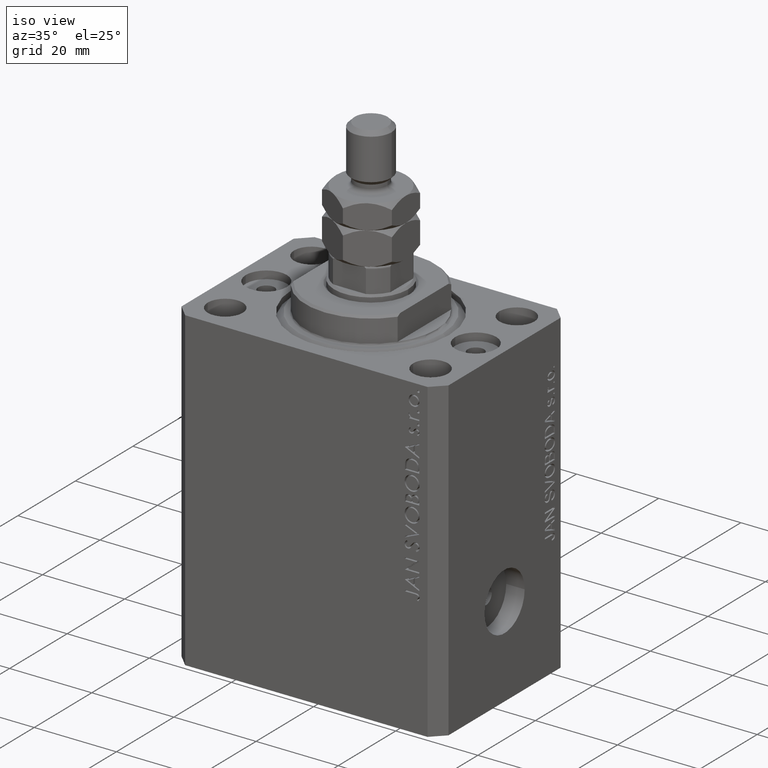
[diagram: clean part render]
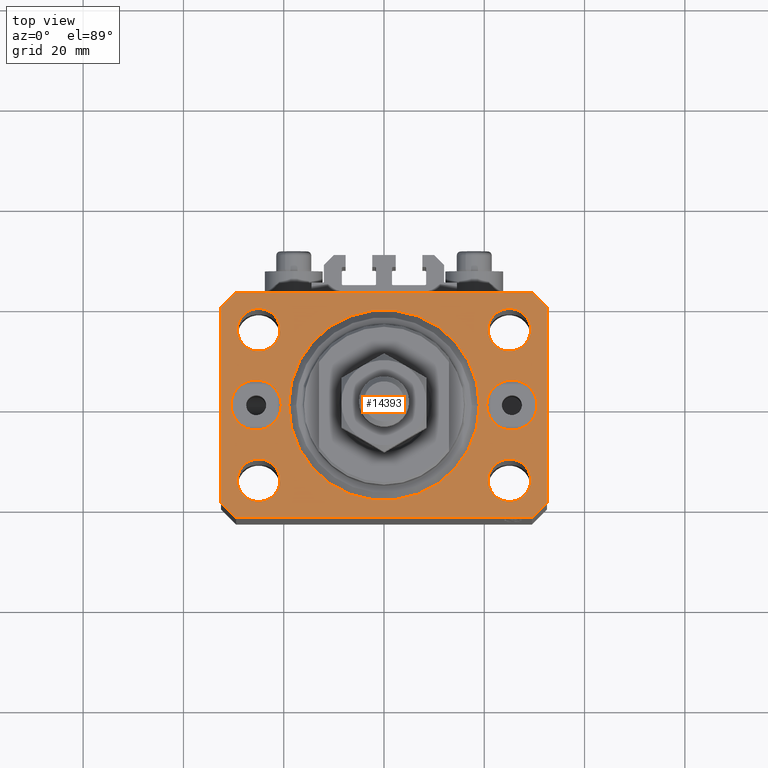
[diagram: tour spotlight — one face highlighted and labeled with its STEP entity id]
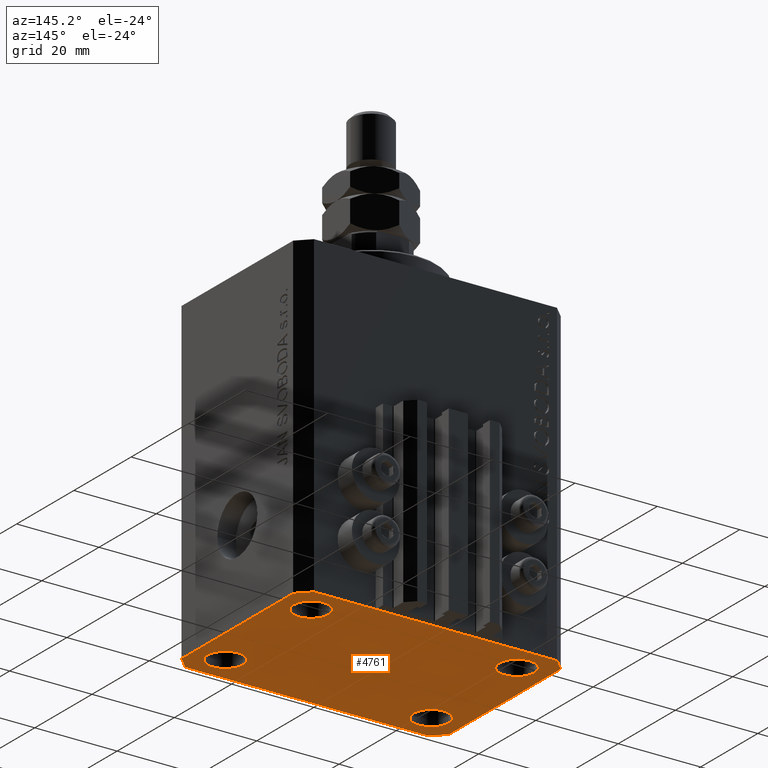
[diagram: tour spotlight — one face highlighted and labeled with its STEP entity id]
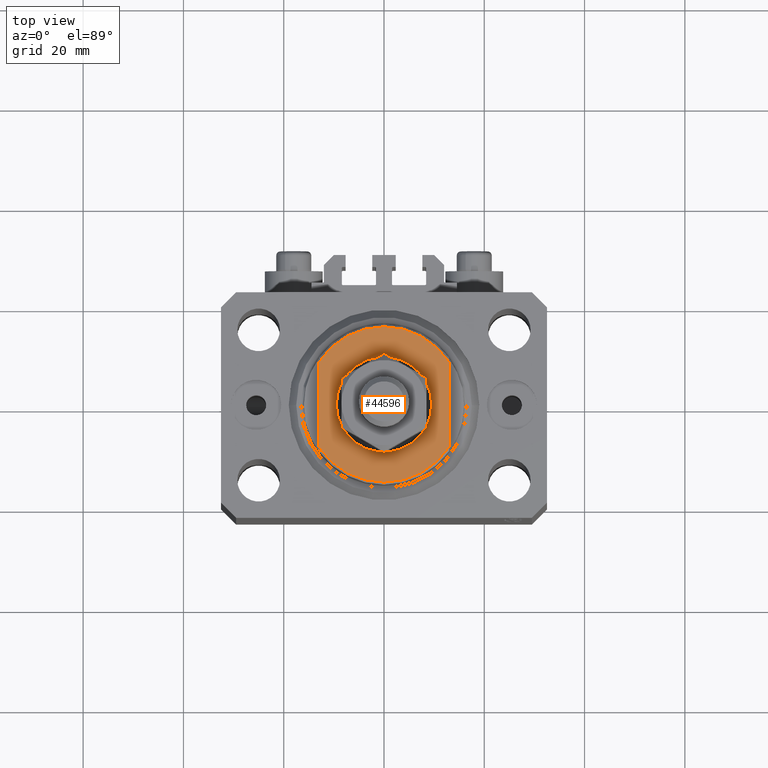
[diagram: tour spotlight — one face highlighted and labeled with its STEP entity id]
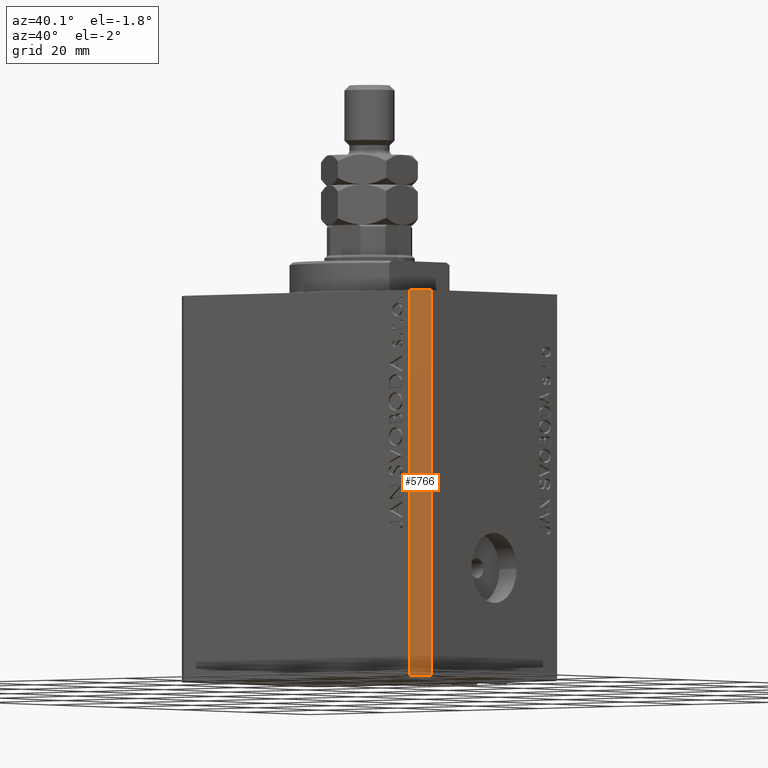
[diagram: tour spotlight — one face highlighted and labeled with its STEP entity id]
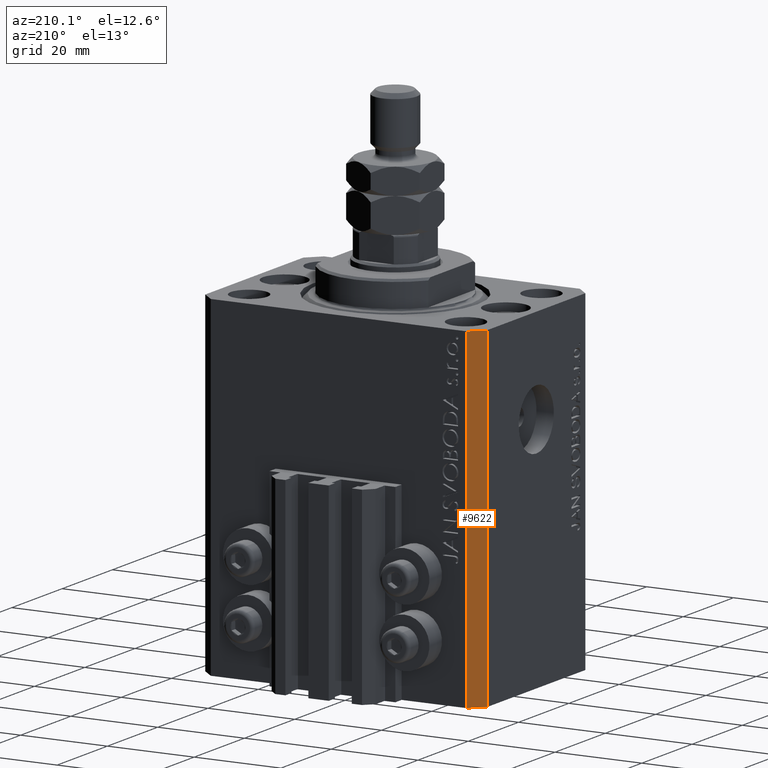
[diagram: tour spotlight — one face highlighted and labeled with its STEP entity id]
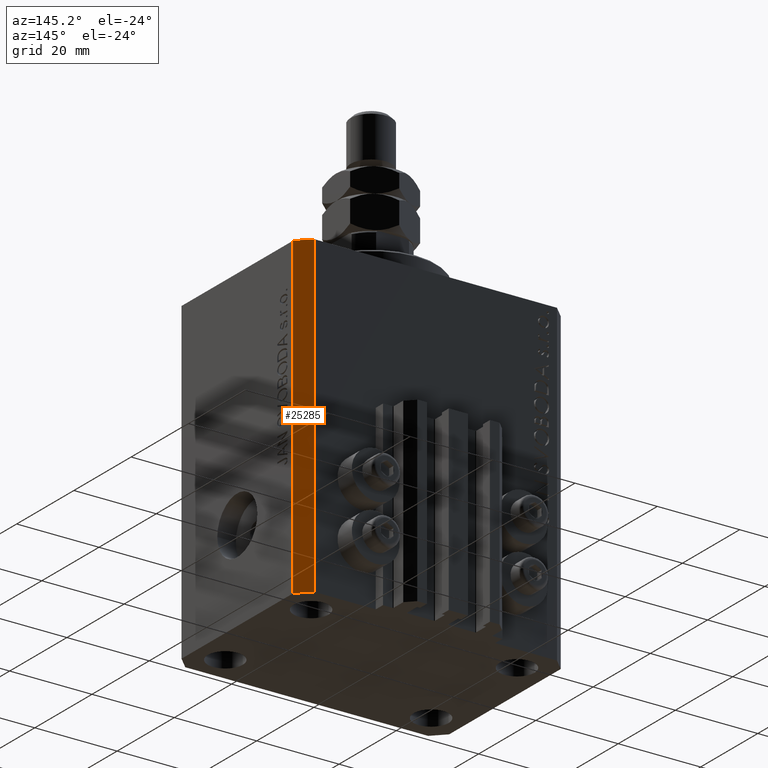
[diagram: tour spotlight — one face highlighted and labeled with its STEP entity id]
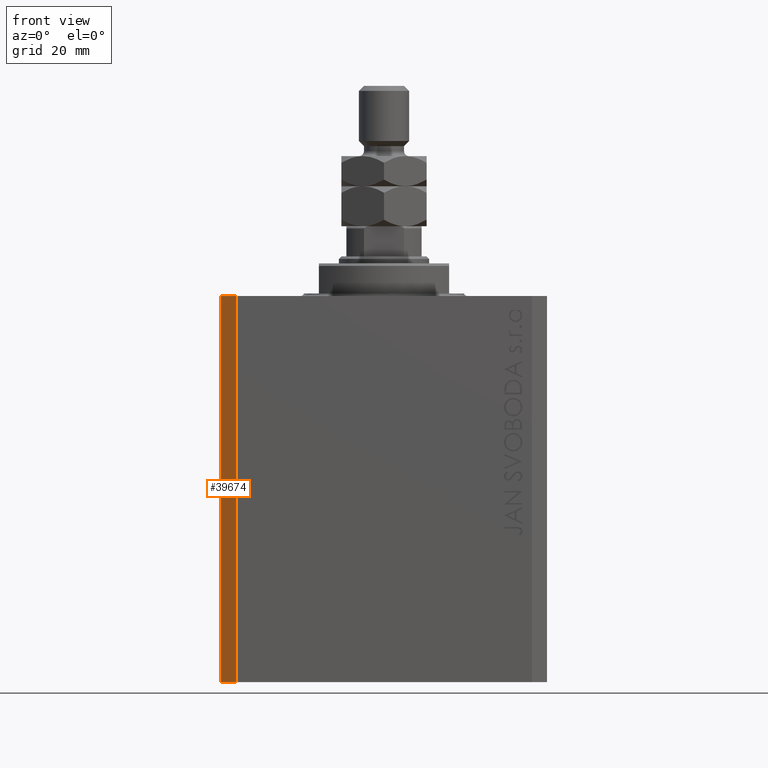
[diagram: tour spotlight — one face highlighted and labeled with its STEP entity id]
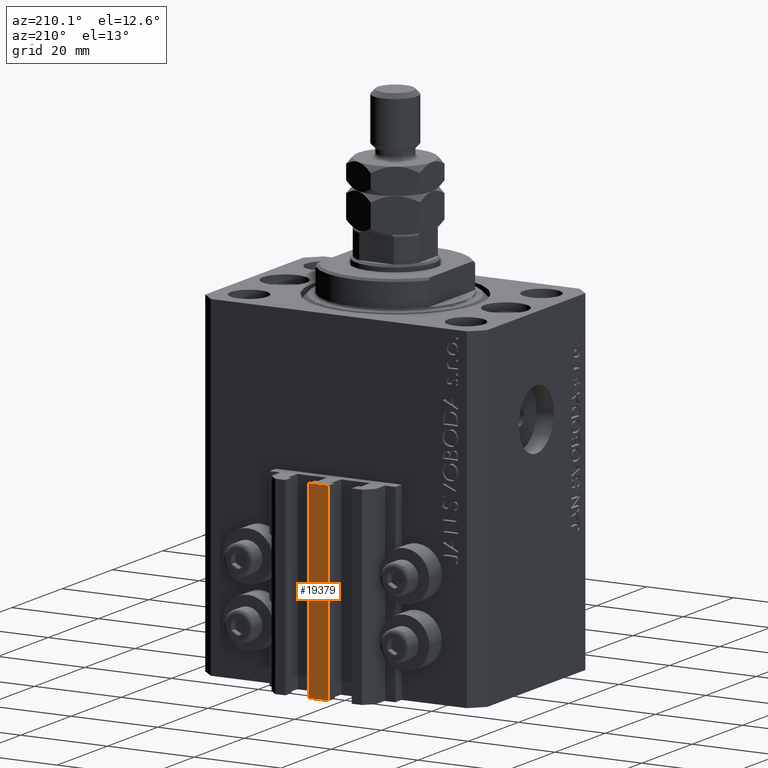
[diagram: tour spotlight — one face highlighted and labeled with its STEP entity id]
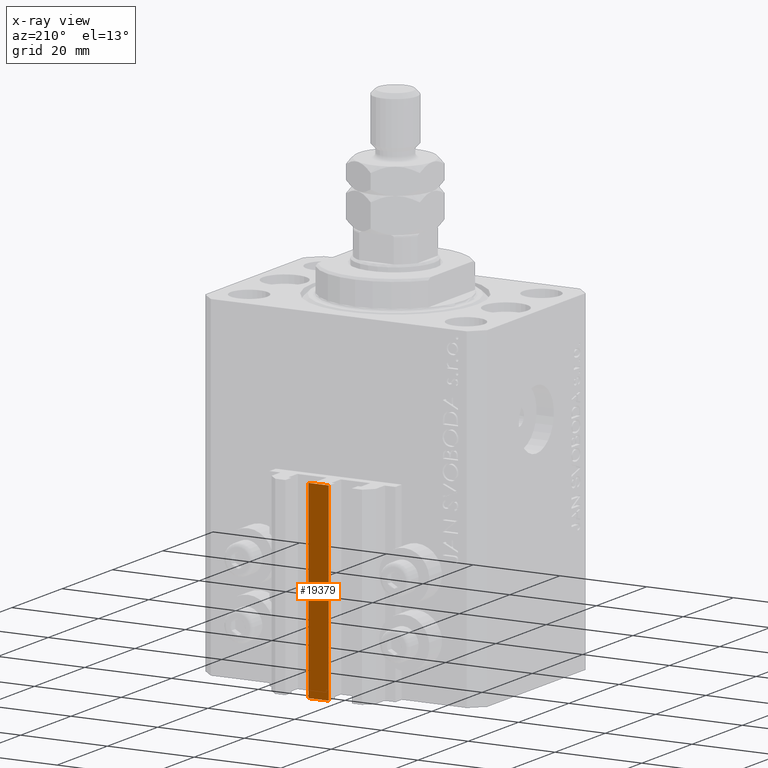
[diagram: x-ray of the same camera — body ghosted, this tour face saturated]
A machine part: a face-by-face anatomy tour. The part has 1082 B-rep faces; the first image is the clean iso view, then the 8 largest visible faces are spotlighted one at a time (largest first), each with its STEP entity span.

Face 1 — top view, entity #14393. In plain terms, the highlighted planar face has unit normal (0, 0, 1).
Definition (entity closure, byte-faithful):
#128 = VERTEX_POINT ( 'NONE', #23561 ) ;
#274 = CARTESIAN_POINT ( 'NONE',  ( -20.74999999997862687, 14.99999999999999645, 0.000000000000000000 ) ) ;
#418 = VECTOR ( 'NONE', #4893, 1000.000000000000000 ) ;
#1132 = CIRCLE ( 'NONE', #6678, 4.250000000021375790 ) ;
#1387 = EDGE_CURVE ( 'NONE', #16491, #32396, #19212, .T. ) ;
#1441 = EDGE_CURVE ( 'NONE', #20265, #28200, #23958, .T. ) ;
#1923 = VECTOR ( 'NONE', #24142, 1000.000000000000114 ) ;
#2418 = VERTEX_POINT ( 'NONE', #17191 ) ;
#2447 = CARTESIAN_POINT ( 'NONE',  ( -32.49999999999650413, 19.49999999999949907, 0.000000000000000000 ) ) ;
#2504 = DIRECTION ( 'NONE',  ( 1.000000000000000000, 0.000000000000000000, 0.000000000000000000 ) ) ;
#3654 = DIRECTION ( 'NONE',  ( 0.000000000000000000, 0.000000000000000000, 1.000000000000000000 ) ) ;
#4087 = CARTESIAN_POINT ( 'NONE',  ( -29.25000000002137668, 14.99999999999999645, 0.000000000000000000 ) ) ;
#4254 = AXIS2_PLACEMENT_3D ( 'NONE', #43403, #27610, #9602 ) ;
#4372 = ORIENTED_EDGE ( 'NONE', *, *, #13687, .F. ) ;
#4483 = CARTESIAN_POINT ( 'NONE',  ( 30.50000000000333955, 0.000000000000000000, 0.000000000000000000 ) ) ;
#4545 = VERTEX_POINT ( 'NONE', #4483 ) ;
#4619 = CIRCLE ( 'NONE', #20368, 5.000000000003342215 ) ;
#4742 = DIRECTION ( 'NONE',  ( 1.000000000000000000, 0.000000000000000000, -0.000000000000000000 ) ) ;
#4797 = EDGE_CURVE ( 'NONE', #16355, #48079, #11823, .T. ) ;
#4893 = DIRECTION ( 'NONE',  ( 0.7071067811865483499, 0.7071067811865466846, 0.000000000000000000 ) ) ;
#5497 = DIRECTION ( 'NONE',  ( 0.000000000000000000, 0.000000000000000000, 1.000000000000000000 ) ) ;
#5737 = DIRECTION ( 'NONE',  ( 1.000000000000000000, 0.000000000000000000, 0.000000000000000000 ) ) ;
#5991 = VECTOR ( 'NONE', #11579, 1000.000000000000000 ) ;
#6005 = VECTOR ( 'NONE', #20113, 1000.000000000000000 ) ;
#6097 = CARTESIAN_POINT ( 'NONE',  ( 20.49999999999665690, 6.123233995740857512E-16, 0.000000000000000000 ) ) ;
#6207 = ORIENTED_EDGE ( 'NONE', *, *, #19282, .T. ) ;
#6253 = ORIENTED_EDGE ( 'NONE', *, *, #40636, .T. ) ;
#6617 = EDGE_LOOP ( 'NONE', ( #6253, #37521 ) ) ;
#6627 = DIRECTION ( 'NONE',  ( 1.000000000000000000, 0.000000000000000000, 0.000000000000000000 ) ) ;
#6678 = AXIS2_PLACEMENT_3D ( 'NONE', #11959, #23317, #27007 ) ;
#7380 = DIRECTION ( 'NONE',  ( 1.000000000000000000, 0.000000000000000000, 0.000000000000000000 ) ) ;
#7541 = ORIENTED_EDGE ( 'NONE', *, *, #45627, .F. ) ;
#7923 = DIRECTION ( 'NONE',  ( 0.000000000000000000, 0.000000000000000000, 1.000000000000000000 ) ) ;
#8043 = CARTESIAN_POINT ( 'NONE',  ( 20.75000000002367884, -15.00000000000000355, 0.000000000000000000 ) ) ;
#8589 = CARTESIAN_POINT ( 'NONE',  ( -25.00000000000000000, 14.99999999999999645, 0.000000000000000000 ) ) ;
#8979 = EDGE_LOOP ( 'NONE', ( #43322, #18980 ) ) ;
#9066 = CIRCLE ( 'NONE', #42173, 4.250000000021375790 ) ;
#9104 = CARTESIAN_POINT ( 'NONE',  ( -32.49999999999650413, -19.49999999999949907, 0.000000000000000000 ) ) ;
#9404 = ORIENTED_EDGE ( 'NONE', *, *, #31840, .F. ) ;
#9602 = DIRECTION ( 'NONE',  ( 1.000000000000000000, 0.000000000000000000, 0.000000000000000000 ) ) ;
#9686 = ORIENTED_EDGE ( 'NONE', *, *, #14099, .T. ) ;
#9987 = DIRECTION ( 'NONE',  ( 0.000000000000000000, 0.000000000000000000, 1.000000000000000000 ) ) ;
#10142 = VERTEX_POINT ( 'NONE', #274 ) ;
#10635 = EDGE_LOOP ( 'NONE', ( #39430, #36838 ) ) ;
#11218 = VERTEX_POINT ( 'NONE', #20682 ) ;
#11540 = CIRCLE ( 'NONE', #28062, 4.250000000040370374 ) ;
#11579 = DIRECTION ( 'NONE',  ( 1.334402673828349134E-14, 1.000000000000000000, 0.000000000000000000 ) ) ;
#11823 = LINE ( 'NONE', #37978, #418 ) ;
#11959 = CARTESIAN_POINT ( 'NONE',  ( -25.00000000000000000, 14.99999999999999645, 0.000000000000000000 ) ) ;
#12134 = FACE_BOUND ( 'NONE', #6617, .T. ) ;
#12215 = EDGE_CURVE ( 'NONE', #128, #37840, #39096, .T. ) ;
#12305 = EDGE_CURVE ( 'NONE', #32396, #16491, #16786, .T. ) ;
#12693 = EDGE_CURVE ( 'NONE', #32391, #10142, #9066, .T. ) ;
#12878 = AXIS2_PLACEMENT_3D ( 'NONE', #20370, #31720, #24323 ) ;
#12914 = VECTOR ( 'NONE', #44966, 1000.000000000000114 ) ;
#13687 = EDGE_CURVE ( 'NONE', #43193, #19188, #26438, .T. ) ;
#13735 = CIRCLE ( 'NONE', #32673, 4.249999999957291053 ) ;
#14099 = EDGE_CURVE ( 'NONE', #25572, #27592, #18002, .T. ) ;
#14393 = ADVANCED_FACE ( 'NONE', ( #23963, #16316, #42969, #42492, #46411, #31135, #45922, #12134 ), #23719, .T. ) ;
#14790 = CARTESIAN_POINT ( 'NONE',  ( 19.00000000000000000, 0.000000000000000000, 0.000000000000000000 ) ) ;
#14862 = EDGE_CURVE ( 'NONE', #10142, #32391, #1132, .T. ) ;
#15578 = CARTESIAN_POINT ( 'NONE',  ( 20.75000000004271072, 14.99999999999999289, 0.000000000000000000 ) ) ;
#15602 = EDGE_CURVE ( 'NONE', #32301, #4545, #39704, .T. ) ;
#16048 = CIRCLE ( 'NONE', #12878, 4.249999999957291053 ) ;
#16316 = FACE_BOUND ( 'NONE', #33933, .T. ) ;
#16355 = VERTEX_POINT ( 'NONE', #22000 ) ;
#16491 = VERTEX_POINT ( 'NONE', #23207 ) ;
#16786 = CIRCLE ( 'NONE', #44400, 4.249999999976314058 ) ;
#16978 = LINE ( 'NONE', #9104, #1923 ) ;
#17191 = CARTESIAN_POINT ( 'NONE',  ( -20.74999999995962341, -15.00000000000000355, 0.000000000000000000 ) ) ;
#17888 = EDGE_LOOP ( 'NONE', ( #9404, #4372 ) ) ;
#18002 = LINE ( 'NONE', #2447, #48511 ) ;
#18116 = CARTESIAN_POINT ( 'NONE',  ( 24.99999999999999289, -15.00000000000000355, 0.000000000000000000 ) ) ;
#18980 = ORIENTED_EDGE ( 'NONE', *, *, #12305, .F. ) ;
#19188 = VERTEX_POINT ( 'NONE', #14790 ) ;
#19204 = AXIS2_PLACEMENT_3D ( 'NONE', #23673, #38979, #30840 ) ;
#19212 = CIRCLE ( 'NONE', #4254, 4.249999999976314058 ) ;
#19282 = EDGE_CURVE ( 'NONE', #48079, #128, #45835, .T. ) ;
#19770 = CARTESIAN_POINT ( 'NONE',  ( -20.49999999999665690, 0.000000000000000000, 0.000000000000000000 ) ) ;
#19907 = DIRECTION ( 'NONE',  ( 0.000000000000000000, 0.000000000000000000, 1.000000000000000000 ) ) ;
#20113 = DIRECTION ( 'NONE',  ( 1.000000000000000000, 1.176083712526788232E-16, 0.000000000000000000 ) ) ;
#20265 = VERTEX_POINT ( 'NONE', #19770 ) ;
#20368 = AXIS2_PLACEMENT_3D ( 'NONE', #40921, #3654, #6627 ) ;
#20370 = CARTESIAN_POINT ( 'NONE',  ( 25.00000000000000000, 14.99999999999999289, 0.000000000000000000 ) ) ;
#20682 = CARTESIAN_POINT ( 'NONE',  ( -29.25000000004036593, -15.00000000000000355, 0.000000000000000000 ) ) ;
#20838 = AXIS2_PLACEMENT_3D ( 'NONE', #45868, #7923, #37774 ) ;
#20972 = EDGE_LOOP ( 'NONE', ( #42608, #33399 ) ) ;
#22000 = CARTESIAN_POINT ( 'NONE',  ( 29.49999999999650413, -22.49999999999949196, 0.000000000000000000 ) ) ;
#22201 = DIRECTION ( 'NONE',  ( 0.000000000000000000, 0.000000000000000000, 1.000000000000000000 ) ) ;
#22496 = AXIS2_PLACEMENT_3D ( 'NONE', #24970, #29156, #2504 ) ;
#22808 = ORIENTED_EDGE ( 'NONE', *, *, #12215, .T. ) ;
#22815 = CARTESIAN_POINT ( 'NONE',  ( 29.49999999999707967, 22.49999999999952038, 0.000000000000000000 ) ) ;
#23111 = CIRCLE ( 'NONE', #26298, 4.250000000040370374 ) ;
#23207 = CARTESIAN_POINT ( 'NONE',  ( 29.24999999997631051, -15.00000000000000355, 0.000000000000000000 ) ) ;
#23317 = DIRECTION ( 'NONE',  ( 0.000000000000000000, 0.000000000000000000, 1.000000000000000000 ) ) ;
#23342 = CARTESIAN_POINT ( 'NONE',  ( -29.49999999999650413, -22.49999999999949907, 0.000000000000000000 ) ) ;
#23561 = CARTESIAN_POINT ( 'NONE',  ( 32.49999999999702993, 19.49999999999945999, 0.000000000000000000 ) ) ;
#23673 = CARTESIAN_POINT ( 'NONE',  ( 25.50000000000000000, 0.000000000000000000, 0.000000000000000000 ) ) ;
#23719 = PLANE ( 'NONE',  #47690 ) ;
#23787 = DIRECTION ( 'NONE',  ( -0.7071067811865344721, 0.7071067811865606734, 0.000000000000000000 ) ) ;
#23958 = CIRCLE ( 'NONE', #46004, 5.000000000003342215 ) ;
#23963 = FACE_OUTER_BOUND ( 'NONE', #39880, .T. ) ;
#24142 = DIRECTION ( 'NONE',  ( 0.7071067811865474617, -0.7071067811865474617, 0.000000000000000000 ) ) ;
#24168 = VERTEX_POINT ( 'NONE', #34804 ) ;
#24309 = EDGE_CURVE ( 'NONE', #11218, #2418, #23111, .T. ) ;
#24323 = DIRECTION ( 'NONE',  ( 1.000000000000000000, 0.000000000000000000, 0.000000000000000000 ) ) ;
#24970 = CARTESIAN_POINT ( 'NONE',  ( 0.000000000000000000, 0.000000000000000000, 0.000000000000000000 ) ) ;
#25537 = DIRECTION ( 'NONE',  ( -1.000000000000000000, -3.528251137580330676E-16, 0.000000000000000000 ) ) ;
#25572 = VERTEX_POINT ( 'NONE', #40112 ) ;
#25616 = CARTESIAN_POINT ( 'NONE',  ( -19.00000000000000000, 2.326828918379970970E-15, 0.000000000000000000 ) ) ;
#25671 = CARTESIAN_POINT ( 'NONE',  ( 25.00000000000000000, 14.99999999999999289, 0.000000000000000000 ) ) ;
#25850 = CARTESIAN_POINT ( 'NONE',  ( -29.49999999999650413, 22.49999999999949907, 0.000000000000000000 ) ) ;
#25911 = DIRECTION ( 'NONE',  ( 1.000000000000000000, 0.000000000000000000, 0.000000000000000000 ) ) ;
#26298 = AXIS2_PLACEMENT_3D ( 'NONE', #43907, #39970, #36017 ) ;
#26438 = CIRCLE ( 'NONE', #22496, 19.00000000000000000 ) ;
#26530 = EDGE_CURVE ( 'NONE', #37840, #44792, #45265, .T. ) ;
#27007 = DIRECTION ( 'NONE',  ( 1.000000000000000000, 0.000000000000000000, 0.000000000000000000 ) ) ;
#27092 = EDGE_CURVE ( 'NONE', #41681, #24168, #13735, .T. ) ;
#27548 = CARTESIAN_POINT ( 'NONE',  ( 29.49999999999707967, 22.49999999999952038, 0.000000000000000000 ) ) ;
#27592 = VERTEX_POINT ( 'NONE', #31419 ) ;
#27610 = DIRECTION ( 'NONE',  ( 0.000000000000000000, 0.000000000000000000, 1.000000000000000000 ) ) ;
#28062 = AXIS2_PLACEMENT_3D ( 'NONE', #39295, #5497, #5737 ) ;
#28200 = VERTEX_POINT ( 'NONE', #33096 ) ;
#28351 = CARTESIAN_POINT ( 'NONE',  ( -29.49999999999650413, -22.49999999999949907, 0.000000000000000000 ) ) ;
#28916 = EDGE_CURVE ( 'NONE', #24168, #41681, #16048, .T. ) ;
#29156 = DIRECTION ( 'NONE',  ( 0.000000000000000000, 0.000000000000000000, 1.000000000000000000 ) ) ;
#29570 = CARTESIAN_POINT ( 'NONE',  ( -25.50000000000000000, 0.000000000000000000, 0.000000000000000000 ) ) ;
#29671 = LINE ( 'NONE', #34114, #12914 ) ;
#30212 = ORIENTED_EDGE ( 'NONE', *, *, #35484, .T. ) ;
#30568 = CARTESIAN_POINT ( 'NONE',  ( 32.49999999999651124, -19.49999999999949196, 0.000000000000000000 ) ) ;
#30724 = EDGE_CURVE ( 'NONE', #44792, #25572, #29671, .T. ) ;
#30840 = DIRECTION ( 'NONE',  ( 1.000000000000000000, 0.000000000000000000, 0.000000000000000000 ) ) ;
#31135 = FACE_BOUND ( 'NONE', #17888, .T. ) ;
#31192 = EDGE_CURVE ( 'NONE', #27592, #32740, #16978, .T. ) ;
#31232 = DIRECTION ( 'NONE',  ( 0.000000000000000000, -0.000000000000000000, -1.000000000000000000 ) ) ;
#31419 = CARTESIAN_POINT ( 'NONE',  ( -32.49999999999650413, -19.49999999999949907, 0.000000000000000000 ) ) ;
#31465 = DIRECTION ( 'NONE',  ( 1.000000000000000000, 0.000000000000000000, 0.000000000000000000 ) ) ;
#31670 = ORIENTED_EDGE ( 'NONE', *, *, #31192, .T. ) ;
#31720 = DIRECTION ( 'NONE',  ( 0.000000000000000000, 0.000000000000000000, 1.000000000000000000 ) ) ;
#31840 = EDGE_CURVE ( 'NONE', #19188, #43193, #43725, .T. ) ;
#32192 = CIRCLE ( 'NONE', #44817, 5.000000000003342215 ) ;
#32301 = VERTEX_POINT ( 'NONE', #6097 ) ;
#32391 = VERTEX_POINT ( 'NONE', #4087 ) ;
#32396 = VERTEX_POINT ( 'NONE', #8043 ) ;
#32673 = AXIS2_PLACEMENT_3D ( 'NONE', #25671, #22201, #25911 ) ;
#32740 = VERTEX_POINT ( 'NONE', #28351 ) ;
#33096 = CARTESIAN_POINT ( 'NONE',  ( -30.50000000000333955, 6.123233995740857512E-16, 0.000000000000000000 ) ) ;
#33399 = ORIENTED_EDGE ( 'NONE', *, *, #24309, .F. ) ;
#33459 = VECTOR ( 'NONE', #25537, 1000.000000000000000 ) ;
#33933 = EDGE_LOOP ( 'NONE', ( #43088, #44869 ) ) ;
#34114 = CARTESIAN_POINT ( 'NONE',  ( -29.49999999999650413, 22.49999999999949907, 0.000000000000000000 ) ) ;
#34552 = EDGE_CURVE ( 'NONE', #2418, #11218, #11540, .T. ) ;
#34804 = CARTESIAN_POINT ( 'NONE',  ( 29.24999999995729283, 14.99999999999999289, 0.000000000000000000 ) ) ;
#35484 = EDGE_CURVE ( 'NONE', #32740, #16355, #42347, .T. ) ;
#36017 = DIRECTION ( 'NONE',  ( 1.000000000000000000, 0.000000000000000000, 0.000000000000000000 ) ) ;
#36188 = EDGE_LOOP ( 'NONE', ( #36863, #7541 ) ) ;
#36555 = ORIENTED_EDGE ( 'NONE', *, *, #4797, .T. ) ;
#36612 = DIRECTION ( 'NONE',  ( 1.000000000000000000, 0.000000000000000000, 0.000000000000000000 ) ) ;
#36664 = CARTESIAN_POINT ( 'NONE',  ( 32.49999999999651124, -19.49999999999949196, 0.000000000000000000 ) ) ;
#36838 = ORIENTED_EDGE ( 'NONE', *, *, #27092, .F. ) ;
#36863 = ORIENTED_EDGE ( 'NONE', *, *, #1441, .F. ) ;
#36960 = ORIENTED_EDGE ( 'NONE', *, *, #26530, .T. ) ;
#37521 = ORIENTED_EDGE ( 'NONE', *, *, #15602, .T. ) ;
#37774 = DIRECTION ( 'NONE',  ( 1.000000000000000000, 0.000000000000000000, 0.000000000000000000 ) ) ;
#37840 = VERTEX_POINT ( 'NONE', #27548 ) ;
#37978 = CARTESIAN_POINT ( 'NONE',  ( 29.49999999999650413, -22.49999999999949196, 0.000000000000000000 ) ) ;
#38618 = CARTESIAN_POINT ( 'NONE',  ( 32.49999999999702993, 19.49999999999945999, 0.000000000000000000 ) ) ;
#38861 = VECTOR ( 'NONE', #23787, 1000.000000000000000 ) ;
#38979 = DIRECTION ( 'NONE',  ( 0.000000000000000000, -0.000000000000000000, -1.000000000000000000 ) ) ;
#39028 = CARTESIAN_POINT ( 'NONE',  ( 0.000000000000000000, 0.000000000000000000, 0.000000000000000000 ) ) ;
#39096 = LINE ( 'NONE', #38618, #38861 ) ;
#39295 = CARTESIAN_POINT ( 'NONE',  ( -24.99999999999999289, -15.00000000000000355, 0.000000000000000000 ) ) ;
#39430 = ORIENTED_EDGE ( 'NONE', *, *, #28916, .F. ) ;
#39704 = CIRCLE ( 'NONE', #19204, 5.000000000003342215 ) ;
#39880 = EDGE_LOOP ( 'NONE', ( #36960, #42663, #9686, #31670, #30212, #36555, #6207, #22808 ) ) ;
#39970 = DIRECTION ( 'NONE',  ( 0.000000000000000000, 0.000000000000000000, 1.000000000000000000 ) ) ;
#40112 = CARTESIAN_POINT ( 'NONE',  ( -32.49999999999650413, 19.49999999999949907, 0.000000000000000000 ) ) ;
#40636 = EDGE_CURVE ( 'NONE', #4545, #32301, #32192, .T. ) ;
#40921 = CARTESIAN_POINT ( 'NONE',  ( -25.50000000000000000, 0.000000000000000000, 0.000000000000000000 ) ) ;
#41681 = VERTEX_POINT ( 'NONE', #15578 ) ;
#42010 = DIRECTION ( 'NONE',  ( 0.000000000000000000, 0.000000000000000000, 1.000000000000000000 ) ) ;
#42173 = AXIS2_PLACEMENT_3D ( 'NONE', #8589, #19907, #45356 ) ;
#42347 = LINE ( 'NONE', #23342, #6005 ) ;
#42492 = FACE_BOUND ( 'NONE', #8979, .T. ) ;
#42608 = ORIENTED_EDGE ( 'NONE', *, *, #34552, .F. ) ;
#42663 = ORIENTED_EDGE ( 'NONE', *, *, #30724, .T. ) ;
#42969 = FACE_BOUND ( 'NONE', #10635, .T. ) ;
#43088 = ORIENTED_EDGE ( 'NONE', *, *, #14862, .F. ) ;
#43193 = VERTEX_POINT ( 'NONE', #25616 ) ;
#43322 = ORIENTED_EDGE ( 'NONE', *, *, #1387, .F. ) ;
#43403 = CARTESIAN_POINT ( 'NONE',  ( 24.99999999999999289, -15.00000000000000355, 0.000000000000000000 ) ) ;
#43725 = CIRCLE ( 'NONE', #20838, 19.00000000000000000 ) ;
#43907 = CARTESIAN_POINT ( 'NONE',  ( -24.99999999999999289, -15.00000000000000355, 0.000000000000000000 ) ) ;
#44400 = AXIS2_PLACEMENT_3D ( 'NONE', #18116, #9987, #36612 ) ;
#44792 = VERTEX_POINT ( 'NONE', #25850 ) ;
#44817 = AXIS2_PLACEMENT_3D ( 'NONE', #46023, #31232, #31465 ) ;
#44869 = ORIENTED_EDGE ( 'NONE', *, *, #12693, .F. ) ;
#44966 = DIRECTION ( 'NONE',  ( -0.7071067811865474617, -0.7071067811865474617, 0.000000000000000000 ) ) ;
#45265 = LINE ( 'NONE', #22815, #33459 ) ;
#45356 = DIRECTION ( 'NONE',  ( 1.000000000000000000, 0.000000000000000000, 0.000000000000000000 ) ) ;
#45627 = EDGE_CURVE ( 'NONE', #28200, #20265, #4619, .T. ) ;
#45835 = LINE ( 'NONE', #30568, #5991 ) ;
#45868 = CARTESIAN_POINT ( 'NONE',  ( 0.000000000000000000, 0.000000000000000000, 0.000000000000000000 ) ) ;
#45922 = FACE_BOUND ( 'NONE', #36188, .T. ) ;
#46004 = AXIS2_PLACEMENT_3D ( 'NONE', #29570, #48070, #7380 ) ;
#46023 = CARTESIAN_POINT ( 'NONE',  ( 25.50000000000000000, 0.000000000000000000, 0.000000000000000000 ) ) ;
#46411 = FACE_BOUND ( 'NONE', #20972, .T. ) ;
#47102 = DIRECTION ( 'NONE',  ( 0.000000000000000000, -1.000000000000000000, 0.000000000000000000 ) ) ;
#47690 = AXIS2_PLACEMENT_3D ( 'NONE', #39028, #42010, #4742 ) ;
#48070 = DIRECTION ( 'NONE',  ( 0.000000000000000000, 0.000000000000000000, 1.000000000000000000 ) ) ;
#48079 = VERTEX_POINT ( 'NONE', #36664 ) ;
#48511 = VECTOR ( 'NONE', #47102, 1000.000000000000000 ) ;

Face 2 — auxiliary view, entity #4761. In plain terms, the highlighted planar face has unit normal (0, 0, 1).
Definition (entity closure, byte-faithful):
#234 = FACE_BOUND ( 'NONE', #34494, .T. ) ;
#1248 = DIRECTION ( 'NONE',  ( 1.000000000000000000, 0.000000000000000000, 0.000000000000000000 ) ) ;
#2370 = DIRECTION ( 'NONE',  ( 0.7071067811865483499, 0.7071067811865466846, 0.000000000000000000 ) ) ;
#2527 = ORIENTED_EDGE ( 'NONE', *, *, #37338, .F. ) ;
#2684 = EDGE_CURVE ( 'NONE', #26985, #17857, #17706, .T. ) ;
#2933 = VECTOR ( 'NONE', #31193, 1000.000000000000000 ) ;
#3146 = ORIENTED_EDGE ( 'NONE', *, *, #33051, .F. ) ;
#3454 = VERTEX_POINT ( 'NONE', #34405 ) ;
#3637 = CARTESIAN_POINT ( 'NONE',  ( 29.49999999999707967, 22.49999999999952038, -77.00000000000000000 ) ) ;
#3732 = VERTEX_POINT ( 'NONE', #35719 ) ;
#4424 = FACE_BOUND ( 'NONE', #21790, .T. ) ;
#4534 = CARTESIAN_POINT ( 'NONE',  ( 32.49999999999702993, 19.49999999999945999, -77.00000000000000000 ) ) ;
#4761 = ADVANCED_FACE ( 'NONE', ( #45138, #7662, #4424, #234, #23409 ), #22927, .F. ) ;
#4964 = VERTEX_POINT ( 'NONE', #45269 ) ;
#5084 = DIRECTION ( 'NONE',  ( -0.000000000000000000, -0.000000000000000000, -1.000000000000000000 ) ) ;
#5205 = CARTESIAN_POINT ( 'NONE',  ( -29.25000000002137668, 14.99999999999999645, -77.00000000000000000 ) ) ;
#5421 = DIRECTION ( 'NONE',  ( -0.000000000000000000, -0.000000000000000000, -1.000000000000000000 ) ) ;
#5796 = DIRECTION ( 'NONE',  ( 1.000000000000000000, 0.000000000000000000, 0.000000000000000000 ) ) ;
#6749 = CARTESIAN_POINT ( 'NONE',  ( -29.49999999999650413, 22.49999999999949907, -77.00000000000000000 ) ) ;
#7000 = DIRECTION ( 'NONE',  ( -0.7071067811865474617, -0.7071067811865474617, 0.000000000000000000 ) ) ;
#7517 = CIRCLE ( 'NONE', #13000, 4.250000000040370374 ) ;
#7536 = AXIS2_PLACEMENT_3D ( 'NONE', #9319, #47035, #35701 ) ;
#7662 = FACE_BOUND ( 'NONE', #36752, .T. ) ;
#7820 = CIRCLE ( 'NONE', #21985, 4.249999999957291053 ) ;
#8421 = CARTESIAN_POINT ( 'NONE',  ( 29.49999999999707967, 22.49999999999952038, -77.00000000000000000 ) ) ;
#8563 = CARTESIAN_POINT ( 'NONE',  ( 25.00000000000000000, 14.99999999999999289, -77.00000000000000000 ) ) ;
#8883 = DIRECTION ( 'NONE',  ( -1.000000000000000000, -3.528251137580330676E-16, 0.000000000000000000 ) ) ;
#9319 = CARTESIAN_POINT ( 'NONE',  ( -24.99999999999999289, -15.00000000000000355, -77.00000000000000000 ) ) ;
#10257 = DIRECTION ( 'NONE',  ( 0.7071067811865474617, -0.7071067811865474617, 0.000000000000000000 ) ) ;
#10272 = CARTESIAN_POINT ( 'NONE',  ( -32.49999999999650413, 19.49999999999949907, -77.00000000000000000 ) ) ;
#11117 = EDGE_CURVE ( 'NONE', #20317, #35380, #38806, .T. ) ;
#11226 = ORIENTED_EDGE ( 'NONE', *, *, #41645, .F. ) ;
#11587 = DIRECTION ( 'NONE',  ( 1.000000000000000000, 0.000000000000000000, -0.000000000000000000 ) ) ;
#11865 = CARTESIAN_POINT ( 'NONE',  ( 24.99999999999999289, -15.00000000000000355, -77.00000000000000000 ) ) ;
#12223 = CIRCLE ( 'NONE', #39810, 4.249999999976314058 ) ;
#12565 = DIRECTION ( 'NONE',  ( 1.000000000000000000, 0.000000000000000000, 0.000000000000000000 ) ) ;
#13000 = AXIS2_PLACEMENT_3D ( 'NONE', #23150, #26378, #30072 ) ;
#13017 = CIRCLE ( 'NONE', #7536, 4.250000000040370374 ) ;
#13121 = DIRECTION ( 'NONE',  ( -0.7071067811865344721, 0.7071067811865606734, 0.000000000000000000 ) ) ;
#13274 = CARTESIAN_POINT ( 'NONE',  ( 20.75000000002367884, -15.00000000000000355, -77.00000000000000000 ) ) ;
#14046 = ORIENTED_EDGE ( 'NONE', *, *, #2684, .F. ) ;
#14620 = AXIS2_PLACEMENT_3D ( 'NONE', #11865, #23210, #1248 ) ;
#14655 = CARTESIAN_POINT ( 'NONE',  ( -20.74999999997862687, 14.99999999999999645, -77.00000000000000000 ) ) ;
#15096 = LINE ( 'NONE', #6749, #17969 ) ;
#15563 = EDGE_CURVE ( 'NONE', #17857, #26985, #42805, .T. ) ;
#16370 = ORIENTED_EDGE ( 'NONE', *, *, #29448, .F. ) ;
#16458 = EDGE_CURVE ( 'NONE', #35380, #25480, #27151, .T. ) ;
#16844 = EDGE_LOOP ( 'NONE', ( #20057, #3146 ) ) ;
#16897 = CARTESIAN_POINT ( 'NONE',  ( -32.49999999999650413, -19.49999999999949907, -77.00000000000000000 ) ) ;
#16986 = LINE ( 'NONE', #32044, #35757 ) ;
#17706 = CIRCLE ( 'NONE', #36586, 4.250000000021375790 ) ;
#17857 = VERTEX_POINT ( 'NONE', #14655 ) ;
#17969 = VECTOR ( 'NONE', #7000, 1000.000000000000114 ) ;
#18357 = EDGE_CURVE ( 'NONE', #4964, #32921, #7517, .T. ) ;
#19727 = ORIENTED_EDGE ( 'NONE', *, *, #26412, .F. ) ;
#19895 = ORIENTED_EDGE ( 'NONE', *, *, #16458, .F. ) ;
#20033 = VECTOR ( 'NONE', #2370, 1000.000000000000000 ) ;
#20057 = ORIENTED_EDGE ( 'NONE', *, *, #18357, .F. ) ;
#20317 = VERTEX_POINT ( 'NONE', #30878 ) ;
#20646 = VERTEX_POINT ( 'NONE', #13274 ) ;
#21622 = DIRECTION ( 'NONE',  ( -0.000000000000000000, -0.000000000000000000, -1.000000000000000000 ) ) ;
#21790 = EDGE_LOOP ( 'NONE', ( #11226, #33726 ) ) ;
#21985 = AXIS2_PLACEMENT_3D ( 'NONE', #47921, #30398, #37802 ) ;
#22389 = ORIENTED_EDGE ( 'NONE', *, *, #42600, .F. ) ;
#22627 = CARTESIAN_POINT ( 'NONE',  ( -29.49999999999650413, 22.49999999999949907, -77.00000000000000000 ) ) ;
#22671 = CARTESIAN_POINT ( 'NONE',  ( -29.25000000004036593, -15.00000000000000355, -77.00000000000000000 ) ) ;
#22695 = DIRECTION ( 'NONE',  ( 0.000000000000000000, 0.000000000000000000, 1.000000000000000000 ) ) ;
#22927 = PLANE ( 'NONE',  #48478 ) ;
#23150 = CARTESIAN_POINT ( 'NONE',  ( -24.99999999999999289, -15.00000000000000355, -77.00000000000000000 ) ) ;
#23178 = VERTEX_POINT ( 'NONE', #44985 ) ;
#23210 = DIRECTION ( 'NONE',  ( -0.000000000000000000, -0.000000000000000000, -1.000000000000000000 ) ) ;
#23308 = CARTESIAN_POINT ( 'NONE',  ( -29.49999999999650413, -22.49999999999949907, -77.00000000000000000 ) ) ;
#23409 = FACE_OUTER_BOUND ( 'NONE', #42176, .T. ) ;
#23979 = ORIENTED_EDGE ( 'NONE', *, *, #33124, .F. ) ;
#24322 = CIRCLE ( 'NONE', #39300, 4.249999999957291053 ) ;
#24335 = LINE ( 'NONE', #39891, #20033 ) ;
#24506 = ORIENTED_EDGE ( 'NONE', *, *, #38581, .F. ) ;
#25480 = VERTEX_POINT ( 'NONE', #22627 ) ;
#26378 = DIRECTION ( 'NONE',  ( -0.000000000000000000, -0.000000000000000000, -1.000000000000000000 ) ) ;
#26412 = EDGE_CURVE ( 'NONE', #3732, #23178, #29228, .T. ) ;
#26985 = VERTEX_POINT ( 'NONE', #5205 ) ;
#27151 = LINE ( 'NONE', #8421, #42835 ) ;
#27811 = AXIS2_PLACEMENT_3D ( 'NONE', #46360, #5421, #12565 ) ;
#28594 = ORIENTED_EDGE ( 'NONE', *, *, #29731, .F. ) ;
#28719 = VECTOR ( 'NONE', #10257, 1000.000000000000114 ) ;
#29228 = LINE ( 'NONE', #16897, #28719 ) ;
#29448 = EDGE_CURVE ( 'NONE', #47991, #3732, #16986, .T. ) ;
#29731 = EDGE_CURVE ( 'NONE', #48728, #33506, #24335, .T. ) ;
#29828 = ORIENTED_EDGE ( 'NONE', *, *, #11117, .F. ) ;
#30072 = DIRECTION ( 'NONE',  ( 1.000000000000000000, 0.000000000000000000, 0.000000000000000000 ) ) ;
#30398 = DIRECTION ( 'NONE',  ( -0.000000000000000000, -0.000000000000000000, -1.000000000000000000 ) ) ;
#30712 = LINE ( 'NONE', #23308, #2933 ) ;
#30878 = CARTESIAN_POINT ( 'NONE',  ( 32.49999999999702993, 19.49999999999945999, -77.00000000000000000 ) ) ;
#31193 = DIRECTION ( 'NONE',  ( 1.000000000000000000, 1.176083712526788232E-16, 0.000000000000000000 ) ) ;
#31953 = CARTESIAN_POINT ( 'NONE',  ( 29.24999999997631051, -15.00000000000000355, -77.00000000000000000 ) ) ;
#32044 = CARTESIAN_POINT ( 'NONE',  ( -32.49999999999650413, 19.49999999999949907, -77.00000000000000000 ) ) ;
#32921 = VERTEX_POINT ( 'NONE', #22671 ) ;
#33051 = EDGE_CURVE ( 'NONE', #32921, #4964, #13017, .T. ) ;
#33124 = EDGE_CURVE ( 'NONE', #20646, #35569, #12223, .T. ) ;
#33506 = VERTEX_POINT ( 'NONE', #46719 ) ;
#33726 = ORIENTED_EDGE ( 'NONE', *, *, #45006, .F. ) ;
#33972 = EDGE_CURVE ( 'NONE', #35569, #20646, #46927, .T. ) ;
#34405 = CARTESIAN_POINT ( 'NONE',  ( 29.24999999995729283, 14.99999999999999289, -77.00000000000000000 ) ) ;
#34494 = EDGE_LOOP ( 'NONE', ( #40476, #14046 ) ) ;
#35380 = VERTEX_POINT ( 'NONE', #3637 ) ;
#35569 = VERTEX_POINT ( 'NONE', #31953 ) ;
#35701 = DIRECTION ( 'NONE',  ( 1.000000000000000000, 0.000000000000000000, 0.000000000000000000 ) ) ;
#35719 = CARTESIAN_POINT ( 'NONE',  ( -32.49999999999650413, -19.49999999999949907, -77.00000000000000000 ) ) ;
#35757 = VECTOR ( 'NONE', #39692, 1000.000000000000000 ) ;
#35921 = DIRECTION ( 'NONE',  ( 1.000000000000000000, 0.000000000000000000, 0.000000000000000000 ) ) ;
#36586 = AXIS2_PLACEMENT_3D ( 'NONE', #43535, #38863, #5796 ) ;
#36752 = EDGE_LOOP ( 'NONE', ( #43260, #23979 ) ) ;
#37176 = CARTESIAN_POINT ( 'NONE',  ( 24.99999999999999289, -15.00000000000000355, -77.00000000000000000 ) ) ;
#37338 = EDGE_CURVE ( 'NONE', #23178, #48728, #30712, .T. ) ;
#37802 = DIRECTION ( 'NONE',  ( 1.000000000000000000, 0.000000000000000000, 0.000000000000000000 ) ) ;
#38560 = LINE ( 'NONE', #39764, #39200 ) ;
#38581 = EDGE_CURVE ( 'NONE', #33506, #20317, #38560, .T. ) ;
#38806 = LINE ( 'NONE', #4534, #39992 ) ;
#38863 = DIRECTION ( 'NONE',  ( -0.000000000000000000, -0.000000000000000000, -1.000000000000000000 ) ) ;
#39200 = VECTOR ( 'NONE', #43712, 1000.000000000000000 ) ;
#39300 = AXIS2_PLACEMENT_3D ( 'NONE', #8563, #5084, #35921 ) ;
#39692 = DIRECTION ( 'NONE',  ( 0.000000000000000000, -1.000000000000000000, 0.000000000000000000 ) ) ;
#39764 = CARTESIAN_POINT ( 'NONE',  ( 32.49999999999651124, -19.49999999999949196, -77.00000000000000000 ) ) ;
#39810 = AXIS2_PLACEMENT_3D ( 'NONE', #37176, #21622, #40158 ) ;
#39891 = CARTESIAN_POINT ( 'NONE',  ( 29.49999999999650413, -22.49999999999949196, -77.00000000000000000 ) ) ;
#39992 = VECTOR ( 'NONE', #13121, 1000.000000000000000 ) ;
#40158 = DIRECTION ( 'NONE',  ( 1.000000000000000000, 0.000000000000000000, 0.000000000000000000 ) ) ;
#40476 = ORIENTED_EDGE ( 'NONE', *, *, #15563, .F. ) ;
#41645 = EDGE_CURVE ( 'NONE', #3454, #48194, #7820, .T. ) ;
#41704 = CARTESIAN_POINT ( 'NONE',  ( 0.000000000000000000, 0.000000000000000000, -77.00000000000000000 ) ) ;
#42176 = EDGE_LOOP ( 'NONE', ( #19895, #29828, #24506, #28594, #2527, #19727, #16370, #22389 ) ) ;
#42600 = EDGE_CURVE ( 'NONE', #25480, #47991, #15096, .T. ) ;
#42805 = CIRCLE ( 'NONE', #27811, 4.250000000021375790 ) ;
#42835 = VECTOR ( 'NONE', #8883, 1000.000000000000000 ) ;
#43260 = ORIENTED_EDGE ( 'NONE', *, *, #33972, .F. ) ;
#43535 = CARTESIAN_POINT ( 'NONE',  ( -25.00000000000000000, 14.99999999999999645, -77.00000000000000000 ) ) ;
#43712 = DIRECTION ( 'NONE',  ( 1.334402673828349134E-14, 1.000000000000000000, 0.000000000000000000 ) ) ;
#44930 = CARTESIAN_POINT ( 'NONE',  ( 29.49999999999650413, -22.49999999999949196, -77.00000000000000000 ) ) ;
#44985 = CARTESIAN_POINT ( 'NONE',  ( -29.49999999999650413, -22.49999999999949907, -77.00000000000000000 ) ) ;
#45006 = EDGE_CURVE ( 'NONE', #48194, #3454, #24322, .T. ) ;
#45138 = FACE_BOUND ( 'NONE', #16844, .T. ) ;
#45269 = CARTESIAN_POINT ( 'NONE',  ( -20.74999999995962341, -15.00000000000000355, -77.00000000000000000 ) ) ;
#45981 = CARTESIAN_POINT ( 'NONE',  ( 20.75000000004271072, 14.99999999999999289, -77.00000000000000000 ) ) ;
#46360 = CARTESIAN_POINT ( 'NONE',  ( -25.00000000000000000, 14.99999999999999645, -77.00000000000000000 ) ) ;
#46719 = CARTESIAN_POINT ( 'NONE',  ( 32.49999999999651124, -19.49999999999949196, -77.00000000000000000 ) ) ;
#46927 = CIRCLE ( 'NONE', #14620, 4.249999999976314058 ) ;
#47035 = DIRECTION ( 'NONE',  ( -0.000000000000000000, -0.000000000000000000, -1.000000000000000000 ) ) ;
#47921 = CARTESIAN_POINT ( 'NONE',  ( 25.00000000000000000, 14.99999999999999289, -77.00000000000000000 ) ) ;
#47991 = VERTEX_POINT ( 'NONE', #10272 ) ;
#48194 = VERTEX_POINT ( 'NONE', #45981 ) ;
#48478 = AXIS2_PLACEMENT_3D ( 'NONE', #41704, #22695, #11587 ) ;
#48728 = VERTEX_POINT ( 'NONE', #44930 ) ;

Face 3 — top view, entity #44596. In plain terms, the highlighted planar face has unit normal (0, 0, 1).
Definition (entity closure, byte-faithful):
#404 = AXIS2_PLACEMENT_3D ( 'NONE', #19005, #27377, #3729 ) ;
#2002 = CIRCLE ( 'NONE', #29593, 15.50000000000003730 ) ;
#3030 = AXIS2_PLACEMENT_3D ( 'NONE', #16826, #35368, #32385 ) ;
#3729 = DIRECTION ( 'NONE',  ( -1.000000000000000000, 0.000000000000000000, 0.000000000000000000 ) ) ;
#5908 = VERTEX_POINT ( 'NONE', #41690 ) ;
#5987 = LINE ( 'NONE', #21009, #47615 ) ;
#7707 = DIRECTION ( 'NONE',  ( -0.000000000000000000, -0.000000000000000000, 1.000000000000000000 ) ) ;
#9075 = DIRECTION ( 'NONE',  ( 0.000000000000000000, 0.000000000000000000, -1.000000000000000000 ) ) ;
#9529 = ORIENTED_EDGE ( 'NONE', *, *, #41757, .F. ) ;
#9670 = CARTESIAN_POINT ( 'NONE',  ( -13.00000000000000000, -8.440971508067137918, -6.500000000000000000 ) ) ;
#9842 = CIRCLE ( 'NONE', #404, 9.500000000000001776 ) ;
#11341 = DIRECTION ( 'NONE',  ( 0.000000000000000000, 0.000000000000000000, -1.000000000000000000 ) ) ;
#12590 = LINE ( 'NONE', #19283, #15682 ) ;
#15030 = CARTESIAN_POINT ( 'NONE',  ( 0.000000000000000000, 0.000000000000000000, -6.500000000000000000 ) ) ;
#15525 = CARTESIAN_POINT ( 'NONE',  ( -13.00000000000000000, 8.440971508067137918, -6.500000000000000000 ) ) ;
#15682 = VECTOR ( 'NONE', #27167, 1000.000000000000000 ) ;
#16826 = CARTESIAN_POINT ( 'NONE',  ( 0.000000000000000000, 0.000000000000000000, -6.500000000000000000 ) ) ;
#17001 = VERTEX_POINT ( 'NONE', #45709 ) ;
#17092 = EDGE_CURVE ( 'NONE', #5908, #18266, #5987, .T. ) ;
#18088 = EDGE_CURVE ( 'NONE', #31413, #17001, #26405, .T. ) ;
#18266 = VERTEX_POINT ( 'NONE', #20225 ) ;
#19005 = CARTESIAN_POINT ( 'NONE',  ( 0.000000000000000000, 0.000000000000000000, -6.500000000000000000 ) ) ;
#19283 = CARTESIAN_POINT ( 'NONE',  ( -13.00000000000000000, -43.08131845707602992, -6.500000000000000000 ) ) ;
#20225 = CARTESIAN_POINT ( 'NONE',  ( 13.00000000000000000, -8.440971508067137918, -6.500000000000000000 ) ) ;
#21009 = CARTESIAN_POINT ( 'NONE',  ( 13.00000000000000000, -43.08131845707602992, -6.500000000000000000 ) ) ;
#21096 = EDGE_LOOP ( 'NONE', ( #43764, #24544, #43810, #9529 ) ) ;
#22139 = VERTEX_POINT ( 'NONE', #9670 ) ;
#24113 = DIRECTION ( 'NONE',  ( -1.000000000000000000, 0.000000000000000000, 0.000000000000000000 ) ) ;
#24544 = ORIENTED_EDGE ( 'NONE', *, *, #17092, .T. ) ;
#26405 = CIRCLE ( 'NONE', #27211, 9.500000000000001776 ) ;
#27167 = DIRECTION ( 'NONE',  ( -0.000000000000000000, -1.000000000000000000, -0.000000000000000000 ) ) ;
#27211 = AXIS2_PLACEMENT_3D ( 'NONE', #34810, #7707, #30134 ) ;
#27347 = FACE_BOUND ( 'NONE', #41225, .T. ) ;
#27377 = DIRECTION ( 'NONE',  ( -0.000000000000000000, -0.000000000000000000, 1.000000000000000000 ) ) ;
#28796 = CARTESIAN_POINT ( 'NONE',  ( 0.000000000000000000, 0.000000000000000000, -6.500000000000000000 ) ) ;
#29593 = AXIS2_PLACEMENT_3D ( 'NONE', #28796, #9075, #24113 ) ;
#30134 = DIRECTION ( 'NONE',  ( -1.000000000000000000, 0.000000000000000000, 0.000000000000000000 ) ) ;
#30544 = ORIENTED_EDGE ( 'NONE', *, *, #18088, .T. ) ;
#30808 = DIRECTION ( 'NONE',  ( -1.000000000000000000, 0.000000000000000000, -0.000000000000000000 ) ) ;
#31413 = VERTEX_POINT ( 'NONE', #34730 ) ;
#31813 = EDGE_CURVE ( 'NONE', #17001, #31413, #9842, .T. ) ;
#32385 = DIRECTION ( 'NONE',  ( -1.000000000000000000, 0.000000000000000000, 0.000000000000000000 ) ) ;
#34395 = EDGE_CURVE ( 'NONE', #43130, #5908, #2002, .T. ) ;
#34730 = CARTESIAN_POINT ( 'NONE',  ( -9.500000000000001776, 0.000000000000000000, -6.500000000000000000 ) ) ;
#34766 = FACE_OUTER_BOUND ( 'NONE', #21096, .T. ) ;
#34810 = CARTESIAN_POINT ( 'NONE',  ( 0.000000000000000000, 0.000000000000000000, -6.500000000000000000 ) ) ;
#35368 = DIRECTION ( 'NONE',  ( 0.000000000000000000, 0.000000000000000000, -1.000000000000000000 ) ) ;
#36079 = DIRECTION ( 'NONE',  ( 0.000000000000000000, -1.000000000000000000, -0.000000000000000000 ) ) ;
#41225 = EDGE_LOOP ( 'NONE', ( #30544, #47678 ) ) ;
#41454 = PLANE ( 'NONE',  #41692 ) ;
#41690 = CARTESIAN_POINT ( 'NONE',  ( 13.00000000000000000, 8.440971508067137918, -6.500000000000000000 ) ) ;
#41692 = AXIS2_PLACEMENT_3D ( 'NONE', #15030, #11341, #30808 ) ;
#41757 = EDGE_CURVE ( 'NONE', #43130, #22139, #12590, .T. ) ;
#42405 = CIRCLE ( 'NONE', #3030, 15.50000000000003730 ) ;
#43130 = VERTEX_POINT ( 'NONE', #15525 ) ;
#43764 = ORIENTED_EDGE ( 'NONE', *, *, #34395, .T. ) ;
#43810 = ORIENTED_EDGE ( 'NONE', *, *, #44410, .T. ) ;
#44410 = EDGE_CURVE ( 'NONE', #18266, #22139, #42405, .T. ) ;
#44596 = ADVANCED_FACE ( 'NONE', ( #27347, #34766 ), #41454, .T. ) ;
#45709 = CARTESIAN_POINT ( 'NONE',  ( 9.500000000000001776, 1.163414459189985880E-15, -6.500000000000000000 ) ) ;
#47615 = VECTOR ( 'NONE', #36079, 1000.000000000000000 ) ;
#47678 = ORIENTED_EDGE ( 'NONE', *, *, #31813, .T. ) ;

Face 4 — auxiliary view, entity #5766. In plain terms, the highlighted planar face has unit normal (0.7071, -0.7071, 0).
Definition (entity closure, byte-faithful):
#418 = VECTOR ( 'NONE', #4893, 1000.000000000000000 ) ;
#2370 = DIRECTION ( 'NONE',  ( 0.7071067811865483499, 0.7071067811865466846, 0.000000000000000000 ) ) ;
#3254 = LINE ( 'NONE', #36827, #39859 ) ;
#3863 = EDGE_CURVE ( 'NONE', #48728, #16355, #30519, .T. ) ;
#4797 = EDGE_CURVE ( 'NONE', #16355, #48079, #11823, .T. ) ;
#4893 = DIRECTION ( 'NONE',  ( 0.7071067811865483499, 0.7071067811865466846, 0.000000000000000000 ) ) ;
#5766 = ADVANCED_FACE ( 'NONE', ( #33308 ), #18488, .T. ) ;
#10852 = DIRECTION ( 'NONE',  ( 0.7071067811865483499, 0.7071067811865466846, 0.000000000000000000 ) ) ;
#11823 = LINE ( 'NONE', #37978, #418 ) ;
#16355 = VERTEX_POINT ( 'NONE', #22000 ) ;
#18488 = PLANE ( 'NONE',  #45385 ) ;
#18956 = EDGE_CURVE ( 'NONE', #33506, #48079, #3254, .T. ) ;
#20033 = VECTOR ( 'NONE', #2370, 1000.000000000000000 ) ;
#20796 = ORIENTED_EDGE ( 'NONE', *, *, #3863, .F. ) ;
#22000 = CARTESIAN_POINT ( 'NONE',  ( 29.49999999999650413, -22.49999999999949196, 0.000000000000000000 ) ) ;
#22870 = CARTESIAN_POINT ( 'NONE',  ( 29.49999999999650413, -22.49999999999949196, -77.00000000000000000 ) ) ;
#24335 = LINE ( 'NONE', #39891, #20033 ) ;
#29588 = CARTESIAN_POINT ( 'NONE',  ( 29.49999999999650413, -22.49999999999949196, -77.00000000000000000 ) ) ;
#29731 = EDGE_CURVE ( 'NONE', #48728, #33506, #24335, .T. ) ;
#30024 = DIRECTION ( 'NONE',  ( 0.000000000000000000, 0.000000000000000000, 1.000000000000000000 ) ) ;
#30519 = LINE ( 'NONE', #22870, #40589 ) ;
#32390 = ORIENTED_EDGE ( 'NONE', *, *, #29731, .T. ) ;
#33308 = FACE_OUTER_BOUND ( 'NONE', #37647, .T. ) ;
#33506 = VERTEX_POINT ( 'NONE', #46719 ) ;
#36664 = CARTESIAN_POINT ( 'NONE',  ( 32.49999999999651124, -19.49999999999949196, 0.000000000000000000 ) ) ;
#36827 = CARTESIAN_POINT ( 'NONE',  ( 32.49999999999651124, -19.49999999999949196, -77.00000000000000000 ) ) ;
#37647 = EDGE_LOOP ( 'NONE', ( #45330, #20796, #32390, #46352 ) ) ;
#37978 = CARTESIAN_POINT ( 'NONE',  ( 29.49999999999650413, -22.49999999999949196, 0.000000000000000000 ) ) ;
#39859 = VECTOR ( 'NONE', #43542, 1000.000000000000000 ) ;
#39891 = CARTESIAN_POINT ( 'NONE',  ( 29.49999999999650413, -22.49999999999949196, -77.00000000000000000 ) ) ;
#40589 = VECTOR ( 'NONE', #30024, 1000.000000000000000 ) ;
#43542 = DIRECTION ( 'NONE',  ( 0.000000000000000000, 0.000000000000000000, 1.000000000000000000 ) ) ;
#44650 = DIRECTION ( 'NONE',  ( 0.7071067811865466846, -0.7071067811865483499, 0.000000000000000000 ) ) ;
#44930 = CARTESIAN_POINT ( 'NONE',  ( 29.49999999999650413, -22.49999999999949196, -77.00000000000000000 ) ) ;
#45330 = ORIENTED_EDGE ( 'NONE', *, *, #4797, .F. ) ;
#45385 = AXIS2_PLACEMENT_3D ( 'NONE', #29588, #44650, #10852 ) ;
#46352 = ORIENTED_EDGE ( 'NONE', *, *, #18956, .T. ) ;
#46719 = CARTESIAN_POINT ( 'NONE',  ( 32.49999999999651124, -19.49999999999949196, -77.00000000000000000 ) ) ;
#48079 = VERTEX_POINT ( 'NONE', #36664 ) ;
#48728 = VERTEX_POINT ( 'NONE', #44930 ) ;

Face 5 — auxiliary view, entity #9622. In plain terms, the highlighted planar face has unit normal (-0.7071, 0.7071, 0).
Definition (entity closure, byte-faithful):
#1290 = CARTESIAN_POINT ( 'NONE',  ( -29.49999999999650413, 22.49999999999949907, -77.00000000000000000 ) ) ;
#1645 = PLANE ( 'NONE',  #33634 ) ;
#6749 = CARTESIAN_POINT ( 'NONE',  ( -29.49999999999650413, 22.49999999999949907, -77.00000000000000000 ) ) ;
#7000 = DIRECTION ( 'NONE',  ( -0.7071067811865474617, -0.7071067811865474617, 0.000000000000000000 ) ) ;
#8468 = LINE ( 'NONE', #1290, #38087 ) ;
#9426 = ORIENTED_EDGE ( 'NONE', *, *, #15278, .F. ) ;
#9622 = ADVANCED_FACE ( 'NONE', ( #20395 ), #1645, .T. ) ;
#10272 = CARTESIAN_POINT ( 'NONE',  ( -32.49999999999650413, 19.49999999999949907, -77.00000000000000000 ) ) ;
#12914 = VECTOR ( 'NONE', #44966, 1000.000000000000114 ) ;
#13188 = VECTOR ( 'NONE', #25499, 1000.000000000000000 ) ;
#15096 = LINE ( 'NONE', #6749, #17969 ) ;
#15278 = EDGE_CURVE ( 'NONE', #25480, #44792, #8468, .T. ) ;
#17651 = EDGE_LOOP ( 'NONE', ( #41769, #9426, #42471, #25985 ) ) ;
#17969 = VECTOR ( 'NONE', #7000, 1000.000000000000114 ) ;
#20395 = FACE_OUTER_BOUND ( 'NONE', #17651, .T. ) ;
#22627 = CARTESIAN_POINT ( 'NONE',  ( -29.49999999999650413, 22.49999999999949907, -77.00000000000000000 ) ) ;
#25480 = VERTEX_POINT ( 'NONE', #22627 ) ;
#25499 = DIRECTION ( 'NONE',  ( 0.000000000000000000, 0.000000000000000000, 1.000000000000000000 ) ) ;
#25572 = VERTEX_POINT ( 'NONE', #40112 ) ;
#25850 = CARTESIAN_POINT ( 'NONE',  ( -29.49999999999650413, 22.49999999999949907, 0.000000000000000000 ) ) ;
#25985 = ORIENTED_EDGE ( 'NONE', *, *, #38385, .T. ) ;
#27325 = DIRECTION ( 'NONE',  ( -0.7071067811865475727, 0.7071067811865475727, 0.000000000000000000 ) ) ;
#27911 = DIRECTION ( 'NONE',  ( 0.000000000000000000, 0.000000000000000000, 1.000000000000000000 ) ) ;
#29671 = LINE ( 'NONE', #34114, #12914 ) ;
#30724 = EDGE_CURVE ( 'NONE', #44792, #25572, #29671, .T. ) ;
#31502 = DIRECTION ( 'NONE',  ( -0.7071067811865474617, -0.7071067811865474617, 0.000000000000000000 ) ) ;
#31745 = CARTESIAN_POINT ( 'NONE',  ( -29.49999999999650413, 22.49999999999949907, -77.00000000000000000 ) ) ;
#33634 = AXIS2_PLACEMENT_3D ( 'NONE', #31745, #27325, #31502 ) ;
#34114 = CARTESIAN_POINT ( 'NONE',  ( -29.49999999999650413, 22.49999999999949907, 0.000000000000000000 ) ) ;
#38087 = VECTOR ( 'NONE', #27911, 1000.000000000000000 ) ;
#38385 = EDGE_CURVE ( 'NONE', #47991, #25572, #40821, .T. ) ;
#40112 = CARTESIAN_POINT ( 'NONE',  ( -32.49999999999650413, 19.49999999999949907, 0.000000000000000000 ) ) ;
#40573 = CARTESIAN_POINT ( 'NONE',  ( -32.49999999999650413, 19.49999999999949907, -77.00000000000000000 ) ) ;
#40821 = LINE ( 'NONE', #40573, #13188 ) ;
#41769 = ORIENTED_EDGE ( 'NONE', *, *, #30724, .F. ) ;
#42471 = ORIENTED_EDGE ( 'NONE', *, *, #42600, .T. ) ;
#42600 = EDGE_CURVE ( 'NONE', #25480, #47991, #15096, .T. ) ;
#44792 = VERTEX_POINT ( 'NONE', #25850 ) ;
#44966 = DIRECTION ( 'NONE',  ( -0.7071067811865474617, -0.7071067811865474617, 0.000000000000000000 ) ) ;
#47991 = VERTEX_POINT ( 'NONE', #10272 ) ;

Face 6 — auxiliary view, entity #25285. In plain terms, the highlighted planar face has unit normal (0.7071, 0.7071, 0).
Definition (entity closure, byte-faithful):
#128 = VERTEX_POINT ( 'NONE', #23561 ) ;
#1104 = AXIS2_PLACEMENT_3D ( 'NONE', #46349, #27838, #31073 ) ;
#1750 = EDGE_LOOP ( 'NONE', ( #3359, #10565, #34825, #43562 ) ) ;
#3359 = ORIENTED_EDGE ( 'NONE', *, *, #12215, .F. ) ;
#3637 = CARTESIAN_POINT ( 'NONE',  ( 29.49999999999707967, 22.49999999999952038, -77.00000000000000000 ) ) ;
#4534 = CARTESIAN_POINT ( 'NONE',  ( 32.49999999999702993, 19.49999999999945999, -77.00000000000000000 ) ) ;
#4701 = CARTESIAN_POINT ( 'NONE',  ( 32.49999999999702993, 19.49999999999945999, -77.00000000000000000 ) ) ;
#5165 = PLANE ( 'NONE',  #1104 ) ;
#6050 = VECTOR ( 'NONE', #30610, 1000.000000000000000 ) ;
#8648 = DIRECTION ( 'NONE',  ( 0.000000000000000000, 0.000000000000000000, 1.000000000000000000 ) ) ;
#9191 = EDGE_CURVE ( 'NONE', #20317, #128, #31089, .T. ) ;
#10565 = ORIENTED_EDGE ( 'NONE', *, *, #9191, .F. ) ;
#11117 = EDGE_CURVE ( 'NONE', #20317, #35380, #38806, .T. ) ;
#12215 = EDGE_CURVE ( 'NONE', #128, #37840, #39096, .T. ) ;
#12840 = VECTOR ( 'NONE', #8648, 1000.000000000000000 ) ;
#13121 = DIRECTION ( 'NONE',  ( -0.7071067811865344721, 0.7071067811865606734, 0.000000000000000000 ) ) ;
#15780 = FACE_OUTER_BOUND ( 'NONE', #1750, .T. ) ;
#20317 = VERTEX_POINT ( 'NONE', #30878 ) ;
#23510 = EDGE_CURVE ( 'NONE', #35380, #37840, #31085, .T. ) ;
#23561 = CARTESIAN_POINT ( 'NONE',  ( 32.49999999999702993, 19.49999999999945999, 0.000000000000000000 ) ) ;
#23787 = DIRECTION ( 'NONE',  ( -0.7071067811865344721, 0.7071067811865606734, 0.000000000000000000 ) ) ;
#25285 = ADVANCED_FACE ( 'NONE', ( #15780 ), #5165, .T. ) ;
#27548 = CARTESIAN_POINT ( 'NONE',  ( 29.49999999999707967, 22.49999999999952038, 0.000000000000000000 ) ) ;
#27838 = DIRECTION ( 'NONE',  ( 0.7071067811865606734, 0.7071067811865344721, -0.000000000000000000 ) ) ;
#30610 = DIRECTION ( 'NONE',  ( 0.000000000000000000, 0.000000000000000000, 1.000000000000000000 ) ) ;
#30878 = CARTESIAN_POINT ( 'NONE',  ( 32.49999999999702993, 19.49999999999945999, -77.00000000000000000 ) ) ;
#31073 = DIRECTION ( 'NONE',  ( -0.7071067811865344721, 0.7071067811865606734, 0.000000000000000000 ) ) ;
#31085 = LINE ( 'NONE', #35280, #12840 ) ;
#31089 = LINE ( 'NONE', #4701, #6050 ) ;
#34825 = ORIENTED_EDGE ( 'NONE', *, *, #11117, .T. ) ;
#35280 = CARTESIAN_POINT ( 'NONE',  ( 29.49999999999707967, 22.49999999999952038, -77.00000000000000000 ) ) ;
#35380 = VERTEX_POINT ( 'NONE', #3637 ) ;
#37840 = VERTEX_POINT ( 'NONE', #27548 ) ;
#38618 = CARTESIAN_POINT ( 'NONE',  ( 32.49999999999702993, 19.49999999999945999, 0.000000000000000000 ) ) ;
#38806 = LINE ( 'NONE', #4534, #39992 ) ;
#38861 = VECTOR ( 'NONE', #23787, 1000.000000000000000 ) ;
#39096 = LINE ( 'NONE', #38618, #38861 ) ;
#39992 = VECTOR ( 'NONE', #13121, 1000.000000000000000 ) ;
#43562 = ORIENTED_EDGE ( 'NONE', *, *, #23510, .T. ) ;
#46349 = CARTESIAN_POINT ( 'NONE',  ( 32.49999999999702993, 19.49999999999945999, -77.00000000000000000 ) ) ;

Face 7 — front view, entity #39674. In plain terms, the highlighted planar face has unit normal (-0.7071, -0.7071, 0).
Definition (entity closure, byte-faithful):
#1923 = VECTOR ( 'NONE', #24142, 1000.000000000000114 ) ;
#1948 = VECTOR ( 'NONE', #16700, 1000.000000000000000 ) ;
#3645 = EDGE_CURVE ( 'NONE', #23178, #32740, #33874, .T. ) ;
#3732 = VERTEX_POINT ( 'NONE', #35719 ) ;
#8835 = DIRECTION ( 'NONE',  ( 0.7071067811865474617, -0.7071067811865474617, 0.000000000000000000 ) ) ;
#9104 = CARTESIAN_POINT ( 'NONE',  ( -32.49999999999650413, -19.49999999999949907, 0.000000000000000000 ) ) ;
#10020 = CARTESIAN_POINT ( 'NONE',  ( -32.49999999999650413, -19.49999999999949907, -77.00000000000000000 ) ) ;
#10257 = DIRECTION ( 'NONE',  ( 0.7071067811865474617, -0.7071067811865474617, 0.000000000000000000 ) ) ;
#13216 = ORIENTED_EDGE ( 'NONE', *, *, #36166, .F. ) ;
#16244 = ORIENTED_EDGE ( 'NONE', *, *, #3645, .T. ) ;
#16700 = DIRECTION ( 'NONE',  ( 0.000000000000000000, 0.000000000000000000, 1.000000000000000000 ) ) ;
#16897 = CARTESIAN_POINT ( 'NONE',  ( -32.49999999999650413, -19.49999999999949907, -77.00000000000000000 ) ) ;
#16902 = LINE ( 'NONE', #10020, #35194 ) ;
#16978 = LINE ( 'NONE', #9104, #1923 ) ;
#17397 = DIRECTION ( 'NONE',  ( 0.000000000000000000, 0.000000000000000000, 1.000000000000000000 ) ) ;
#19696 = PLANE ( 'NONE',  #48681 ) ;
#20003 = EDGE_LOOP ( 'NONE', ( #33731, #13216, #43398, #16244 ) ) ;
#23178 = VERTEX_POINT ( 'NONE', #44985 ) ;
#24142 = DIRECTION ( 'NONE',  ( 0.7071067811865474617, -0.7071067811865474617, 0.000000000000000000 ) ) ;
#26412 = EDGE_CURVE ( 'NONE', #3732, #23178, #29228, .T. ) ;
#27096 = FACE_OUTER_BOUND ( 'NONE', #20003, .T. ) ;
#27573 = DIRECTION ( 'NONE',  ( -0.7071067811865475727, -0.7071067811865475727, 0.000000000000000000 ) ) ;
#27592 = VERTEX_POINT ( 'NONE', #31419 ) ;
#27812 = CARTESIAN_POINT ( 'NONE',  ( -29.49999999999650413, -22.49999999999949907, -77.00000000000000000 ) ) ;
#28351 = CARTESIAN_POINT ( 'NONE',  ( -29.49999999999650413, -22.49999999999949907, 0.000000000000000000 ) ) ;
#28719 = VECTOR ( 'NONE', #10257, 1000.000000000000114 ) ;
#29228 = LINE ( 'NONE', #16897, #28719 ) ;
#31192 = EDGE_CURVE ( 'NONE', #27592, #32740, #16978, .T. ) ;
#31419 = CARTESIAN_POINT ( 'NONE',  ( -32.49999999999650413, -19.49999999999949907, 0.000000000000000000 ) ) ;
#32740 = VERTEX_POINT ( 'NONE', #28351 ) ;
#33731 = ORIENTED_EDGE ( 'NONE', *, *, #31192, .F. ) ;
#33874 = LINE ( 'NONE', #27812, #1948 ) ;
#34756 = CARTESIAN_POINT ( 'NONE',  ( -32.49999999999650413, -19.49999999999949907, -77.00000000000000000 ) ) ;
#35194 = VECTOR ( 'NONE', #17397, 1000.000000000000000 ) ;
#35719 = CARTESIAN_POINT ( 'NONE',  ( -32.49999999999650413, -19.49999999999949907, -77.00000000000000000 ) ) ;
#36166 = EDGE_CURVE ( 'NONE', #3732, #27592, #16902, .T. ) ;
#39674 = ADVANCED_FACE ( 'NONE', ( #27096 ), #19696, .T. ) ;
#43398 = ORIENTED_EDGE ( 'NONE', *, *, #26412, .T. ) ;
#44985 = CARTESIAN_POINT ( 'NONE',  ( -29.49999999999650413, -22.49999999999949907, -77.00000000000000000 ) ) ;
#48681 = AXIS2_PLACEMENT_3D ( 'NONE', #34756, #27573, #8835 ) ;

Face 8 — auxiliary view, entity #19379. An x-ray twin of the same camera follows (body ghosted, this face saturated) — the face is partly hidden behind the body. In plain terms, the highlighted planar face has unit normal (0, -1, 0).
Definition (entity closure, byte-faithful):
#1241 = DIRECTION ( 'NONE',  ( 1.000000000000000000, 0.000000000000000000, 0.000000000000000000 ) ) ;
#2651 = VECTOR ( 'NONE', #1241, 1000.000000000000000 ) ;
#3099 = DIRECTION ( 'NONE',  ( 0.000000000000000000, 0.000000000000000000, 1.000000000000000000 ) ) ;
#3813 = CARTESIAN_POINT ( 'NONE',  ( 2.349999999999999645, 30.49999999999949907, -77.00000000000000000 ) ) ;
#3934 = CARTESIAN_POINT ( 'NONE',  ( -2.350000000000003197, 30.49999999999949907, -77.00000000000000000 ) ) ;
#6325 = VERTEX_POINT ( 'NONE', #3813 ) ;
#8121 = PLANE ( 'NONE',  #47915 ) ;
#8313 = VECTOR ( 'NONE', #37492, 1000.000000000000000 ) ;
#8606 = VECTOR ( 'NONE', #3099, 1000.000000000000000 ) ;
#10027 = CARTESIAN_POINT ( 'NONE',  ( -2.350000000000003197, 30.49999999999949907, -77.00000000000000000 ) ) ;
#11090 = CARTESIAN_POINT ( 'NONE',  ( 2.349999999999999645, 30.49999999999949907, -77.00000000000000000 ) ) ;
#12169 = VERTEX_POINT ( 'NONE', #30240 ) ;
#14981 = LINE ( 'NONE', #15217, #46372 ) ;
#15217 = CARTESIAN_POINT ( 'NONE',  ( -2.350000000000003197, 30.49999999999949907, -33.00000000000000000 ) ) ;
#18166 = ORIENTED_EDGE ( 'NONE', *, *, #18384, .F. ) ;
#18261 = CARTESIAN_POINT ( 'NONE',  ( -2.350000000000003197, 30.49999999999949907, -77.00000000000000000 ) ) ;
#18384 = EDGE_CURVE ( 'NONE', #6325, #12169, #19452, .T. ) ;
#19379 = ADVANCED_FACE ( 'NONE', ( #26858 ), #8121, .F. ) ;
#19452 = LINE ( 'NONE', #11090, #8313 ) ;
#21241 = CARTESIAN_POINT ( 'NONE',  ( -2.350000000000003197, 30.49999999999949907, -33.00000000000000000 ) ) ;
#22636 = ORIENTED_EDGE ( 'NONE', *, *, #41923, .T. ) ;
#24216 = EDGE_CURVE ( 'NONE', #36585, #6325, #35044, .T. ) ;
#26858 = FACE_OUTER_BOUND ( 'NONE', #34412, .T. ) ;
#30240 = CARTESIAN_POINT ( 'NONE',  ( 2.349999999999999645, 30.49999999999949907, -33.00000000000000000 ) ) ;
#34412 = EDGE_LOOP ( 'NONE', ( #22636, #18166, #39129, #42390 ) ) ;
#35044 = LINE ( 'NONE', #35287, #2651 ) ;
#35287 = CARTESIAN_POINT ( 'NONE',  ( -2.350000000000003197, 30.49999999999949907, -77.00000000000000000 ) ) ;
#36585 = VERTEX_POINT ( 'NONE', #18261 ) ;
#37146 = LINE ( 'NONE', #10027, #8606 ) ;
#37492 = DIRECTION ( 'NONE',  ( 0.000000000000000000, 0.000000000000000000, 1.000000000000000000 ) ) ;
#37970 = DIRECTION ( 'NONE',  ( 0.000000000000000000, -1.000000000000000000, 0.000000000000000000 ) ) ;
#38219 = DIRECTION ( 'NONE',  ( 0.000000000000000000, -0.000000000000000000, -1.000000000000000000 ) ) ;
#39129 = ORIENTED_EDGE ( 'NONE', *, *, #24216, .F. ) ;
#41923 = EDGE_CURVE ( 'NONE', #48502, #12169, #14981, .T. ) ;
#42390 = ORIENTED_EDGE ( 'NONE', *, *, #45796, .T. ) ;
#45564 = DIRECTION ( 'NONE',  ( 1.000000000000000000, 0.000000000000000000, 0.000000000000000000 ) ) ;
#45796 = EDGE_CURVE ( 'NONE', #36585, #48502, #37146, .T. ) ;
#46372 = VECTOR ( 'NONE', #45564, 1000.000000000000000 ) ;
#47915 = AXIS2_PLACEMENT_3D ( 'NONE', #3934, #37970, #38219 ) ;
#48502 = VERTEX_POINT ( 'NONE', #21241 ) ;